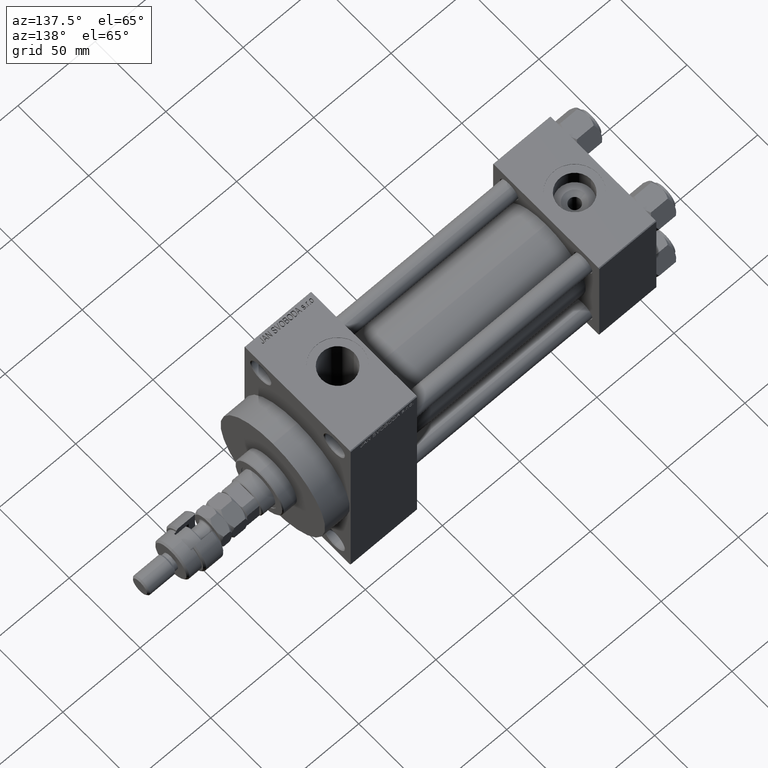
[diagram: clean part render]
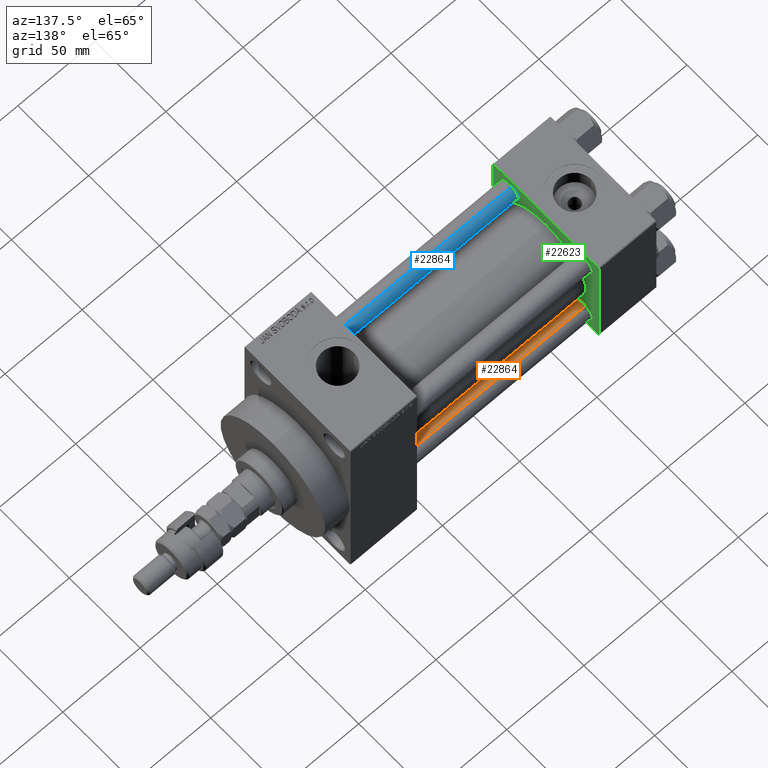
[diagram: same view with three faces highlighted in distinct colors, each labeled with its STEP entity id]
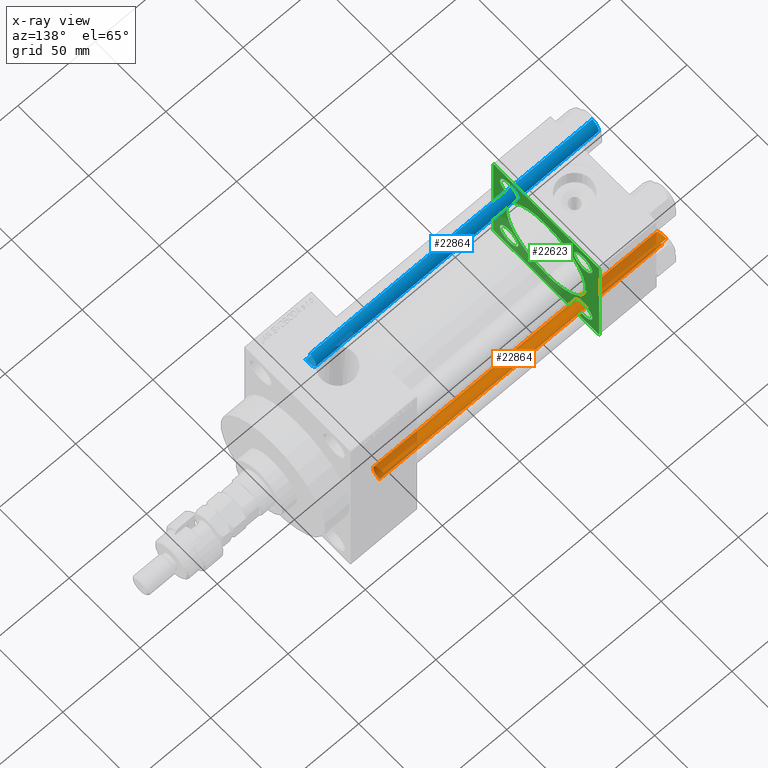
[diagram: x-ray of the same camera — body ghosted, the three highlighted faces saturated]
A machine part, auxiliary view with three faces highlighted in distinct colors.
The next image is the same camera in x-ray (body ghosted, the three faces saturated) — at least one of them is partly hidden behind the body in this view.
Their STEP definitions:

[orange] entity #22864 — the highlighted cylindrical surface (edge-blend (fillet) strip) has radius 6 mm, axis along (1, -0, 0).
#33 = DIRECTION ( 'NONE',  ( 1.000000000000000000, 0.000000000000000000, 0.000000000000000000 ) ) ;
#297 = CARTESIAN_POINT ( 'NONE',  ( 0.000000000000000000, 0.000000000000000000, 183.5000000000000000 ) ) ;
#549 = DIRECTION ( 'NONE',  ( 0.000000000000000000, 0.000000000000000000, -1.000000000000000000 ) ) ;
#1431 = EDGE_CURVE ( 'NONE', #43720, #27098, #27886, .T. ) ;
#3436 = VERTEX_POINT ( 'NONE', #32493 ) ;
#4698 = CIRCLE ( 'NONE', #23266, 6.000000000000000888 ) ;
#6486 = CARTESIAN_POINT ( 'NONE',  ( -6.000000000000000888, 0.000000000000000000, 183.5000000000000000 ) ) ;
#7277 = ORIENTED_EDGE ( 'NONE', *, *, #11036, .F. ) ;
#7762 = VECTOR ( 'NONE', #43516, 1000.000000000000000 ) ;
#8702 = VECTOR ( 'NONE', #29725, 1000.000000000000000 ) ;
#8982 = CARTESIAN_POINT ( 'NONE',  ( 6.000000000000000888, 7.347880794884120722E-16, 183.5000000000000000 ) ) ;
#9153 = CARTESIAN_POINT ( 'NONE',  ( 0.000000000000000000, 0.000000000000000000, 184.0000000000000000 ) ) ;
#10069 = LINE ( 'NONE', #41416, #7762 ) ;
#11036 = EDGE_CURVE ( 'NONE', #43720, #3436, #48942, .T. ) ;
#11950 = CARTESIAN_POINT ( 'NONE',  ( -6.000000000000000888, 0.000000000000000000, 0.5000000000000004441 ) ) ;
#12286 = EDGE_CURVE ( 'NONE', #42617, #3436, #4698, .T. ) ;
#14299 = CARTESIAN_POINT ( 'NONE',  ( 6.000000000000000888, 7.347880794884120722E-16, 184.0000000000000000 ) ) ;
#16979 = ORIENTED_EDGE ( 'NONE', *, *, #12286, .T. ) ;
#18527 = CARTESIAN_POINT ( 'NONE',  ( 0.000000000000000000, 0.000000000000000000, 0.5000000000000004441 ) ) ;
#22864 = ADVANCED_FACE ( 'NONE', ( #43789 ), #48099, .T. ) ;
#23266 = AXIS2_PLACEMENT_3D ( 'NONE', #18527, #38480, #33 ) ;
#23335 = DIRECTION ( 'NONE',  ( 1.000000000000000000, 0.000000000000000000, 0.000000000000000000 ) ) ;
#27098 = VERTEX_POINT ( 'NONE', #6486 ) ;
#27886 = CIRCLE ( 'NONE', #40817, 6.000000000000000888 ) ;
#28258 = AXIS2_PLACEMENT_3D ( 'NONE', #9153, #35469, #40262 ) ;
#29725 = DIRECTION ( 'NONE',  ( -0.000000000000000000, -0.000000000000000000, -1.000000000000000000 ) ) ;
#32493 = CARTESIAN_POINT ( 'NONE',  ( 6.000000000000000888, 7.347880794884120722E-16, 0.5000000000000004441 ) ) ;
#33212 = ORIENTED_EDGE ( 'NONE', *, *, #1431, .T. ) ;
#35469 = DIRECTION ( 'NONE',  ( -0.000000000000000000, -0.000000000000000000, -1.000000000000000000 ) ) ;
#36106 = EDGE_LOOP ( 'NONE', ( #7277, #33212, #47633, #16979 ) ) ;
#38480 = DIRECTION ( 'NONE',  ( -0.000000000000000000, -0.000000000000000000, 1.000000000000000000 ) ) ;
#40150 = EDGE_CURVE ( 'NONE', #27098, #42617, #10069, .T. ) ;
#40262 = DIRECTION ( 'NONE',  ( -1.000000000000000000, 0.000000000000000000, 0.000000000000000000 ) ) ;
#40817 = AXIS2_PLACEMENT_3D ( 'NONE', #297, #549, #23335 ) ;
#41416 = CARTESIAN_POINT ( 'NONE',  ( -6.000000000000000888, 0.000000000000000000, 184.0000000000000000 ) ) ;
#42617 = VERTEX_POINT ( 'NONE', #11950 ) ;
#43516 = DIRECTION ( 'NONE',  ( -0.000000000000000000, -0.000000000000000000, -1.000000000000000000 ) ) ;
#43720 = VERTEX_POINT ( 'NONE', #8982 ) ;
#43789 = FACE_OUTER_BOUND ( 'NONE', #36106, .T. ) ;
#47633 = ORIENTED_EDGE ( 'NONE', *, *, #40150, .T. ) ;
#48099 = CYLINDRICAL_SURFACE ( 'NONE', #28258, 6.000000000000000888 ) ;
#48942 = LINE ( 'NONE', #14299, #8702 ) ;

[blue] entity #22864 — the highlighted cylindrical surface (edge-blend (fillet) strip) has radius 6 mm, axis along (1, 0, 0).
#33 = DIRECTION ( 'NONE',  ( 1.000000000000000000, 0.000000000000000000, 0.000000000000000000 ) ) ;
#297 = CARTESIAN_POINT ( 'NONE',  ( 0.000000000000000000, 0.000000000000000000, 183.5000000000000000 ) ) ;
#549 = DIRECTION ( 'NONE',  ( 0.000000000000000000, 0.000000000000000000, -1.000000000000000000 ) ) ;
#1431 = EDGE_CURVE ( 'NONE', #43720, #27098, #27886, .T. ) ;
#3436 = VERTEX_POINT ( 'NONE', #32493 ) ;
#4698 = CIRCLE ( 'NONE', #23266, 6.000000000000000888 ) ;
#6486 = CARTESIAN_POINT ( 'NONE',  ( -6.000000000000000888, 0.000000000000000000, 183.5000000000000000 ) ) ;
#7277 = ORIENTED_EDGE ( 'NONE', *, *, #11036, .F. ) ;
#7762 = VECTOR ( 'NONE', #43516, 1000.000000000000000 ) ;
#8702 = VECTOR ( 'NONE', #29725, 1000.000000000000000 ) ;
#8982 = CARTESIAN_POINT ( 'NONE',  ( 6.000000000000000888, 7.347880794884120722E-16, 183.5000000000000000 ) ) ;
#9153 = CARTESIAN_POINT ( 'NONE',  ( 0.000000000000000000, 0.000000000000000000, 184.0000000000000000 ) ) ;
#10069 = LINE ( 'NONE', #41416, #7762 ) ;
#11036 = EDGE_CURVE ( 'NONE', #43720, #3436, #48942, .T. ) ;
#11950 = CARTESIAN_POINT ( 'NONE',  ( -6.000000000000000888, 0.000000000000000000, 0.5000000000000004441 ) ) ;
#12286 = EDGE_CURVE ( 'NONE', #42617, #3436, #4698, .T. ) ;
#14299 = CARTESIAN_POINT ( 'NONE',  ( 6.000000000000000888, 7.347880794884120722E-16, 184.0000000000000000 ) ) ;
#16979 = ORIENTED_EDGE ( 'NONE', *, *, #12286, .T. ) ;
#18527 = CARTESIAN_POINT ( 'NONE',  ( 0.000000000000000000, 0.000000000000000000, 0.5000000000000004441 ) ) ;
#22864 = ADVANCED_FACE ( 'NONE', ( #43789 ), #48099, .T. ) ;
#23266 = AXIS2_PLACEMENT_3D ( 'NONE', #18527, #38480, #33 ) ;
#23335 = DIRECTION ( 'NONE',  ( 1.000000000000000000, 0.000000000000000000, 0.000000000000000000 ) ) ;
#27098 = VERTEX_POINT ( 'NONE', #6486 ) ;
#27886 = CIRCLE ( 'NONE', #40817, 6.000000000000000888 ) ;
#28258 = AXIS2_PLACEMENT_3D ( 'NONE', #9153, #35469, #40262 ) ;
#29725 = DIRECTION ( 'NONE',  ( -0.000000000000000000, -0.000000000000000000, -1.000000000000000000 ) ) ;
#32493 = CARTESIAN_POINT ( 'NONE',  ( 6.000000000000000888, 7.347880794884120722E-16, 0.5000000000000004441 ) ) ;
#33212 = ORIENTED_EDGE ( 'NONE', *, *, #1431, .T. ) ;
#35469 = DIRECTION ( 'NONE',  ( -0.000000000000000000, -0.000000000000000000, -1.000000000000000000 ) ) ;
#36106 = EDGE_LOOP ( 'NONE', ( #7277, #33212, #47633, #16979 ) ) ;
#38480 = DIRECTION ( 'NONE',  ( -0.000000000000000000, -0.000000000000000000, 1.000000000000000000 ) ) ;
#40150 = EDGE_CURVE ( 'NONE', #27098, #42617, #10069, .T. ) ;
#40262 = DIRECTION ( 'NONE',  ( -1.000000000000000000, 0.000000000000000000, 0.000000000000000000 ) ) ;
#40817 = AXIS2_PLACEMENT_3D ( 'NONE', #297, #549, #23335 ) ;
#41416 = CARTESIAN_POINT ( 'NONE',  ( -6.000000000000000888, 0.000000000000000000, 184.0000000000000000 ) ) ;
#42617 = VERTEX_POINT ( 'NONE', #11950 ) ;
#43516 = DIRECTION ( 'NONE',  ( -0.000000000000000000, -0.000000000000000000, -1.000000000000000000 ) ) ;
#43720 = VERTEX_POINT ( 'NONE', #8982 ) ;
#43789 = FACE_OUTER_BOUND ( 'NONE', #36106, .T. ) ;
#47633 = ORIENTED_EDGE ( 'NONE', *, *, #40150, .T. ) ;
#48099 = CYLINDRICAL_SURFACE ( 'NONE', #28258, 6.000000000000000888 ) ;
#48942 = LINE ( 'NONE', #14299, #8702 ) ;

[green] entity #22623 — the highlighted planar face has unit normal (-1, 0, 0).
#390 = ORIENTED_EDGE ( 'NONE', *, *, #29947, .T. ) ;
#550 = DIRECTION ( 'NONE',  ( -1.000000000000000000, 0.000000000000000000, -0.000000000000000000 ) ) ;
#667 = CARTESIAN_POINT ( 'NONE',  ( 37.00000000000000000, 26.14999999999999858, 19.64999999999999858 ) ) ;
#716 = DIRECTION ( 'NONE',  ( 1.000000000000000000, -0.000000000000000000, 0.000000000000000000 ) ) ;
#839 = CARTESIAN_POINT ( 'NONE',  ( 37.00000000000000000, 37.49999999999999289, 37.00000000000000000 ) ) ;
#1143 = DIRECTION ( 'NONE',  ( 0.000000000000000000, 0.000000000000000000, 1.000000000000000000 ) ) ;
#1323 = CARTESIAN_POINT ( 'NONE',  ( 37.00000000000000711, 8.269258236473784371E-16, -28.00000000000000000 ) ) ;
#1740 = CARTESIAN_POINT ( 'NONE',  ( 37.00000000000000000, 26.14999999999999858, -32.65000000000000568 ) ) ;
#1948 = AXIS2_PLACEMENT_3D ( 'NONE', #41456, #40715, #21514 ) ;
#2349 = ORIENTED_EDGE ( 'NONE', *, *, #20455, .F. ) ;
#2629 = DIRECTION ( 'NONE',  ( -0.000000000000000000, 0.000000000000000000, 1.000000000000000000 ) ) ;
#3204 = ORIENTED_EDGE ( 'NONE', *, *, #45089, .T. ) ;
#3278 = DIRECTION ( 'NONE',  ( -1.000000000000000000, 0.000000000000000000, -0.000000000000000000 ) ) ;
#4098 = CARTESIAN_POINT ( 'NONE',  ( 37.00000000000000000, -26.14999999999999147, -26.15000000000000924 ) ) ;
#4143 = CARTESIAN_POINT ( 'NONE',  ( 37.00000000000000000, 37.49999999999999289, 37.50000000000000000 ) ) ;
#4207 = ORIENTED_EDGE ( 'NONE', *, *, #47686, .T. ) ;
#4341 = VERTEX_POINT ( 'NONE', #667 ) ;
#4834 = CARTESIAN_POINT ( 'NONE',  ( 37.00000000000000711, -2.602085213965210642E-15, 0.000000000000000000 ) ) ;
#5281 = VERTEX_POINT ( 'NONE', #37340 ) ;
#5792 = CARTESIAN_POINT ( 'NONE',  ( 37.00000000000000000, -26.14999999999999147, 26.15000000000000924 ) ) ;
#5844 = VERTEX_POINT ( 'NONE', #1740 ) ;
#5860 = CIRCLE ( 'NONE', #6657, 28.00000000000000000 ) ;
#5892 = CIRCLE ( 'NONE', #47066, 6.500000000000008882 ) ;
#5998 = CIRCLE ( 'NONE', #41505, 6.500000000000008882 ) ;
#6657 = AXIS2_PLACEMENT_3D ( 'NONE', #42701, #716, #11598 ) ;
#6688 = DIRECTION ( 'NONE',  ( 0.000000000000000000, -0.7071067811865474617, 0.7071067811865474617 ) ) ;
#6934 = CARTESIAN_POINT ( 'NONE',  ( 37.00000000000000000, -26.14999999999999147, 32.65000000000001990 ) ) ;
#7874 = DIRECTION ( 'NONE',  ( 0.000000000000000000, 0.000000000000000000, 1.000000000000000000 ) ) ;
#8179 = DIRECTION ( 'NONE',  ( 0.000000000000000000, -1.000000000000000000, -9.251858538542971581E-17 ) ) ;
#8378 = ORIENTED_EDGE ( 'NONE', *, *, #13952, .F. ) ;
#8914 = DIRECTION ( 'NONE',  ( 0.000000000000000000, 9.251858538542971581E-17, -1.000000000000000000 ) ) ;
#9193 = CARTESIAN_POINT ( 'NONE',  ( 37.00000000000000000, -37.50000000000000000, -37.00000000000003553 ) ) ;
#9332 = EDGE_CURVE ( 'NONE', #18956, #38366, #25930, .T. ) ;
#9558 = VERTEX_POINT ( 'NONE', #32445 ) ;
#9961 = CARTESIAN_POINT ( 'NONE',  ( 37.00000000000000000, 37.49999999999999289, -36.99999999999998579 ) ) ;
#10037 = VERTEX_POINT ( 'NONE', #6934 ) ;
#10132 = VERTEX_POINT ( 'NONE', #49417 ) ;
#11389 = ORIENTED_EDGE ( 'NONE', *, *, #37208, .T. ) ;
#11598 = DIRECTION ( 'NONE',  ( 0.000000000000000000, 0.000000000000000000, 1.000000000000000000 ) ) ;
#12168 = CARTESIAN_POINT ( 'NONE',  ( 37.00000000000000000, -37.50000000000000711, 36.99999999999999289 ) ) ;
#13150 = VECTOR ( 'NONE', #14152, 1000.000000000000114 ) ;
#13290 = CARTESIAN_POINT ( 'NONE',  ( 37.00000000000000000, 26.14999999999999858, -26.15000000000000213 ) ) ;
#13441 = CIRCLE ( 'NONE', #32828, 6.500000000000002665 ) ;
#13472 = CIRCLE ( 'NONE', #32066, 6.500000000000002665 ) ;
#13952 = EDGE_CURVE ( 'NONE', #29273, #43951, #36266, .T. ) ;
#14152 = DIRECTION ( 'NONE',  ( -0.000000000000000000, 0.7071067811865474617, 0.7071067811865474617 ) ) ;
#14273 = FACE_BOUND ( 'NONE', #43693, .T. ) ;
#14717 = ORIENTED_EDGE ( 'NONE', *, *, #41677, .T. ) ;
#15109 = EDGE_CURVE ( 'NONE', #43227, #5844, #45980, .T. ) ;
#15632 = ORIENTED_EDGE ( 'NONE', *, *, #30739, .T. ) ;
#15714 = EDGE_CURVE ( 'NONE', #5281, #9558, #36369, .T. ) ;
#15985 = DIRECTION ( 'NONE',  ( 0.000000000000000000, 0.000000000000000000, 1.000000000000000000 ) ) ;
#16141 = AXIS2_PLACEMENT_3D ( 'NONE', #24959, #17112, #40365 ) ;
#16516 = LINE ( 'NONE', #4143, #31742 ) ;
#17112 = DIRECTION ( 'NONE',  ( -1.000000000000000000, 0.000000000000000000, -0.000000000000000000 ) ) ;
#17194 = ORIENTED_EDGE ( 'NONE', *, *, #15714, .T. ) ;
#17312 = CIRCLE ( 'NONE', #1948, 6.500000000000002665 ) ;
#17644 = VECTOR ( 'NONE', #6688, 1000.000000000000114 ) ;
#17683 = DIRECTION ( 'NONE',  ( 0.000000000000000000, 0.000000000000000000, 1.000000000000000000 ) ) ;
#18317 = FACE_BOUND ( 'NONE', #47158, .T. ) ;
#18626 = ORIENTED_EDGE ( 'NONE', *, *, #46325, .T. ) ;
#18956 = VERTEX_POINT ( 'NONE', #839 ) ;
#19702 = CARTESIAN_POINT ( 'NONE',  ( 37.00000000000000000, 36.99999999999997868, -37.50000000000000000 ) ) ;
#19961 = LINE ( 'NONE', #23065, #36380 ) ;
#20455 = EDGE_CURVE ( 'NONE', #18956, #42297, #29624, .T. ) ;
#20896 = DIRECTION ( 'NONE',  ( -1.000000000000000000, 0.000000000000000000, -0.000000000000000000 ) ) ;
#21514 = DIRECTION ( 'NONE',  ( 0.000000000000000000, 0.000000000000000000, 1.000000000000000000 ) ) ;
#21620 = FACE_BOUND ( 'NONE', #38546, .T. ) ;
#21882 = ORIENTED_EDGE ( 'NONE', *, *, #32914, .T. ) ;
#22442 = LINE ( 'NONE', #42131, #41915 ) ;
#22598 = FACE_BOUND ( 'NONE', #37564, .T. ) ;
#22623 = ADVANCED_FACE ( 'NONE', ( #14273, #21620, #22598, #37049, #18317, #41075 ), #49163, .F. ) ;
#23057 = CARTESIAN_POINT ( 'NONE',  ( 37.00000000000000000, -26.14999999999999147, 26.15000000000000924 ) ) ;
#23065 = CARTESIAN_POINT ( 'NONE',  ( 37.00000000000000000, 37.49999999999999289, -37.50000000000000000 ) ) ;
#23577 = DIRECTION ( 'NONE',  ( 0.000000000000000000, 0.000000000000000000, 1.000000000000000000 ) ) ;
#24170 = EDGE_CURVE ( 'NONE', #32132, #38744, #19961, .T. ) ;
#24318 = DIRECTION ( 'NONE',  ( 1.000000000000000000, -0.000000000000000000, 0.000000000000000000 ) ) ;
#24959 = CARTESIAN_POINT ( 'NONE',  ( 37.00000000000000000, -26.14999999999999147, -26.15000000000000924 ) ) ;
#25123 = LINE ( 'NONE', #36498, #47071 ) ;
#25930 = LINE ( 'NONE', #41332, #17644 ) ;
#26395 = DIRECTION ( 'NONE',  ( -1.000000000000000000, 0.000000000000000000, -0.000000000000000000 ) ) ;
#26460 = CARTESIAN_POINT ( 'NONE',  ( 37.00000000000000000, -37.00000000000000711, 37.49999999999999289 ) ) ;
#26603 = VERTEX_POINT ( 'NONE', #26460 ) ;
#27609 = DIRECTION ( 'NONE',  ( -0.000000000000000000, -0.7071067811865474617, -0.7071067811865474617 ) ) ;
#28859 = AXIS2_PLACEMENT_3D ( 'NONE', #30375, #30879, #39201 ) ;
#29040 = AXIS2_PLACEMENT_3D ( 'NONE', #38424, #3278, #41959 ) ;
#29229 = CARTESIAN_POINT ( 'NONE',  ( 37.00000000000000000, -37.00000000000002132, -37.50000000000000711 ) ) ;
#29273 = VERTEX_POINT ( 'NONE', #1323 ) ;
#29624 = LINE ( 'NONE', #33171, #46959 ) ;
#29691 = CIRCLE ( 'NONE', #28859, 6.500000000000002665 ) ;
#29775 = ORIENTED_EDGE ( 'NONE', *, *, #36484, .T. ) ;
#29802 = CARTESIAN_POINT ( 'NONE',  ( 37.00000000000000000, 26.14999999999999858, 32.65000000000001279 ) ) ;
#29947 = EDGE_CURVE ( 'NONE', #32132, #42297, #33374, .T. ) ;
#29950 = ORIENTED_EDGE ( 'NONE', *, *, #49872, .T. ) ;
#30375 = CARTESIAN_POINT ( 'NONE',  ( 37.00000000000000000, 26.14999999999999858, 26.15000000000000213 ) ) ;
#30453 = CARTESIAN_POINT ( 'NONE',  ( 37.00000000000000711, -2.602085213965210642E-15, 28.00000000000000000 ) ) ;
#30689 = ORIENTED_EDGE ( 'NONE', *, *, #32131, .F. ) ;
#30739 = EDGE_CURVE ( 'NONE', #10132, #38191, #25123, .T. ) ;
#30879 = DIRECTION ( 'NONE',  ( -1.000000000000000000, 0.000000000000000000, -0.000000000000000000 ) ) ;
#31365 = CARTESIAN_POINT ( 'NONE',  ( 37.00000000000000000, -26.14999999999999147, 19.65000000000000213 ) ) ;
#31742 = VECTOR ( 'NONE', #8179, 1000.000000000000000 ) ;
#32066 = AXIS2_PLACEMENT_3D ( 'NONE', #13290, #20896, #1143 ) ;
#32131 = EDGE_CURVE ( 'NONE', #43951, #29273, #5860, .T. ) ;
#32132 = VERTEX_POINT ( 'NONE', #19702 ) ;
#32445 = CARTESIAN_POINT ( 'NONE',  ( 37.00000000000000000, -26.14999999999999147, -19.65000000000000924 ) ) ;
#32828 = AXIS2_PLACEMENT_3D ( 'NONE', #4098, #550, #15985 ) ;
#32914 = EDGE_CURVE ( 'NONE', #38366, #26603, #16516, .T. ) ;
#33171 = CARTESIAN_POINT ( 'NONE',  ( 37.00000000000000000, 37.49999999999999289, 37.50000000000000000 ) ) ;
#33204 = EDGE_CURVE ( 'NONE', #49796, #10037, #5892, .T. ) ;
#33374 = LINE ( 'NONE', #48801, #13150 ) ;
#35189 = LINE ( 'NONE', #12168, #36736 ) ;
#35867 = ORIENTED_EDGE ( 'NONE', *, *, #9332, .T. ) ;
#36266 = CIRCLE ( 'NONE', #37874, 28.00000000000000000 ) ;
#36369 = CIRCLE ( 'NONE', #16141, 6.500000000000002665 ) ;
#36380 = VECTOR ( 'NONE', #38483, 1000.000000000000000 ) ;
#36484 = EDGE_CURVE ( 'NONE', #4341, #40206, #17312, .T. ) ;
#36498 = CARTESIAN_POINT ( 'NONE',  ( 37.00000000000000000, -37.50000000000000711, 37.49999999999999289 ) ) ;
#36655 = DIRECTION ( 'NONE',  ( -1.000000000000000000, 0.000000000000000000, -0.000000000000000000 ) ) ;
#36736 = VECTOR ( 'NONE', #27609, 1000.000000000000114 ) ;
#37049 = FACE_BOUND ( 'NONE', #46600, .T. ) ;
#37208 = EDGE_CURVE ( 'NONE', #26603, #10132, #35189, .T. ) ;
#37292 = CARTESIAN_POINT ( 'NONE',  ( 37.00000000000000000, 0.000000000000000000, 0.000000000000000000 ) ) ;
#37340 = CARTESIAN_POINT ( 'NONE',  ( 37.00000000000000000, -26.14999999999999147, -32.65000000000001279 ) ) ;
#37564 = EDGE_LOOP ( 'NONE', ( #46278, #29950 ) ) ;
#37854 = DIRECTION ( 'NONE',  ( 0.000000000000000000, 0.7071067811865524577, -0.7071067811865426878 ) ) ;
#37874 = AXIS2_PLACEMENT_3D ( 'NONE', #4834, #24318, #23577 ) ;
#38191 = VERTEX_POINT ( 'NONE', #9193 ) ;
#38366 = VERTEX_POINT ( 'NONE', #47510 ) ;
#38398 = EDGE_LOOP ( 'NONE', ( #44579, #390, #2349, #35867, #21882, #11389, #15632, #4207 ) ) ;
#38424 = CARTESIAN_POINT ( 'NONE',  ( 37.00000000000000000, 26.14999999999999858, -26.15000000000000213 ) ) ;
#38474 = DIRECTION ( 'NONE',  ( -1.000000000000000000, 0.000000000000000000, -0.000000000000000000 ) ) ;
#38483 = DIRECTION ( 'NONE',  ( 0.000000000000000000, -1.000000000000000000, -9.251858538542972814E-17 ) ) ;
#38546 = EDGE_LOOP ( 'NONE', ( #3204, #47531 ) ) ;
#38744 = VERTEX_POINT ( 'NONE', #29229 ) ;
#39201 = DIRECTION ( 'NONE',  ( 0.000000000000000000, 0.000000000000000000, 1.000000000000000000 ) ) ;
#40206 = VERTEX_POINT ( 'NONE', #29802 ) ;
#40365 = DIRECTION ( 'NONE',  ( 0.000000000000000000, 0.000000000000000000, 1.000000000000000000 ) ) ;
#40715 = DIRECTION ( 'NONE',  ( -1.000000000000000000, 0.000000000000000000, -0.000000000000000000 ) ) ;
#41075 = FACE_OUTER_BOUND ( 'NONE', #38398, .T. ) ;
#41332 = CARTESIAN_POINT ( 'NONE',  ( 37.00000000000000000, 36.99999999999999289, 37.50000000000000000 ) ) ;
#41456 = CARTESIAN_POINT ( 'NONE',  ( 37.00000000000000000, 26.14999999999999858, 26.15000000000000213 ) ) ;
#41505 = AXIS2_PLACEMENT_3D ( 'NONE', #5792, #36655, #17683 ) ;
#41677 = EDGE_CURVE ( 'NONE', #9558, #5281, #13441, .T. ) ;
#41915 = VECTOR ( 'NONE', #37854, 1000.000000000000000 ) ;
#41959 = DIRECTION ( 'NONE',  ( 0.000000000000000000, 0.000000000000000000, 1.000000000000000000 ) ) ;
#42131 = CARTESIAN_POINT ( 'NONE',  ( 37.00000000000000000, -37.00000000000002132, -37.50000000000000711 ) ) ;
#42297 = VERTEX_POINT ( 'NONE', #9961 ) ;
#42701 = CARTESIAN_POINT ( 'NONE',  ( 37.00000000000000711, -2.602085213965210642E-15, 0.000000000000000000 ) ) ;
#43227 = VERTEX_POINT ( 'NONE', #48358 ) ;
#43693 = EDGE_LOOP ( 'NONE', ( #17194, #14717 ) ) ;
#43951 = VERTEX_POINT ( 'NONE', #30453 ) ;
#44385 = AXIS2_PLACEMENT_3D ( 'NONE', #37292, #26395, #2629 ) ;
#44579 = ORIENTED_EDGE ( 'NONE', *, *, #24170, .F. ) ;
#45089 = EDGE_CURVE ( 'NONE', #5844, #43227, #13472, .T. ) ;
#45980 = CIRCLE ( 'NONE', #29040, 6.500000000000002665 ) ;
#46278 = ORIENTED_EDGE ( 'NONE', *, *, #33204, .T. ) ;
#46325 = EDGE_CURVE ( 'NONE', #40206, #4341, #29691, .T. ) ;
#46600 = EDGE_LOOP ( 'NONE', ( #29775, #18626 ) ) ;
#46959 = VECTOR ( 'NONE', #48082, 1000.000000000000000 ) ;
#47066 = AXIS2_PLACEMENT_3D ( 'NONE', #23057, #38474, #7874 ) ;
#47071 = VECTOR ( 'NONE', #8914, 1000.000000000000000 ) ;
#47158 = EDGE_LOOP ( 'NONE', ( #30689, #8378 ) ) ;
#47510 = CARTESIAN_POINT ( 'NONE',  ( 37.00000000000000000, 36.99999999999999289, 37.50000000000000000 ) ) ;
#47531 = ORIENTED_EDGE ( 'NONE', *, *, #15109, .T. ) ;
#47686 = EDGE_CURVE ( 'NONE', #38191, #38744, #22442, .T. ) ;
#48082 = DIRECTION ( 'NONE',  ( 0.000000000000000000, 0.000000000000000000, -1.000000000000000000 ) ) ;
#48358 = CARTESIAN_POINT ( 'NONE',  ( 37.00000000000000000, 26.14999999999999858, -19.65000000000000213 ) ) ;
#48801 = CARTESIAN_POINT ( 'NONE',  ( 37.00000000000000000, 37.49999999999999289, -36.99999999999998579 ) ) ;
#49163 = PLANE ( 'NONE',  #44385 ) ;
#49417 = CARTESIAN_POINT ( 'NONE',  ( 37.00000000000000000, -37.50000000000000711, 36.99999999999999289 ) ) ;
#49796 = VERTEX_POINT ( 'NONE', #31365 ) ;
#49872 = EDGE_CURVE ( 'NONE', #10037, #49796, #5998, .T. ) ;